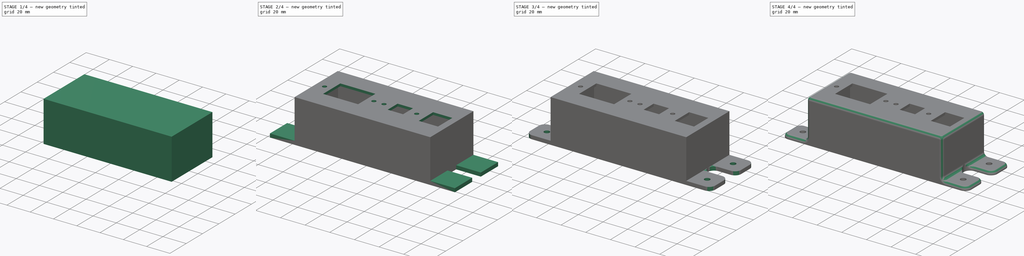
[diagram: build sequence overview — one tinted view per stage of 4, left to right]
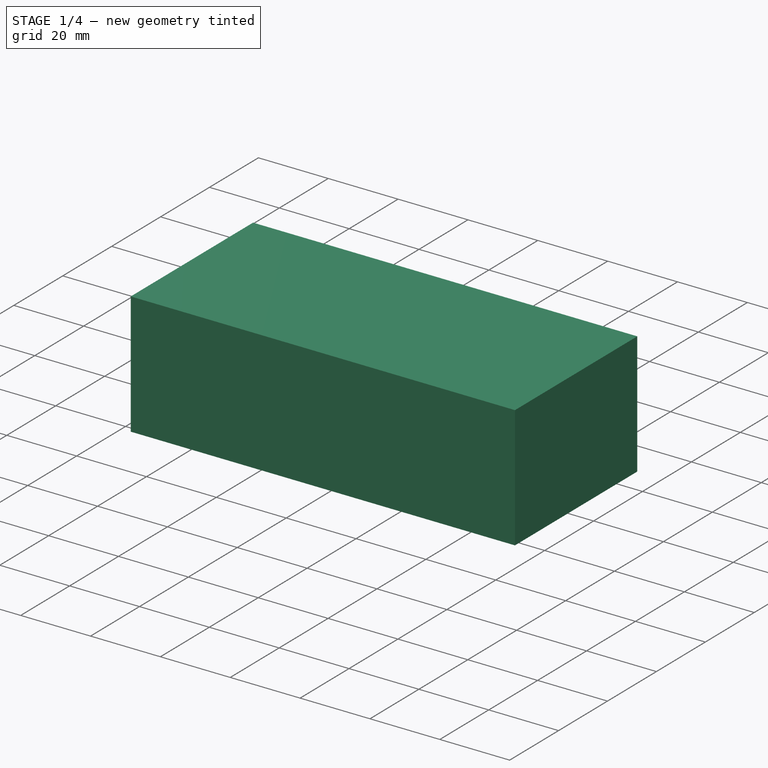
[diagram: stage 1 of 4 — iso view after this stage's code; geometry added in this stage tinted green]
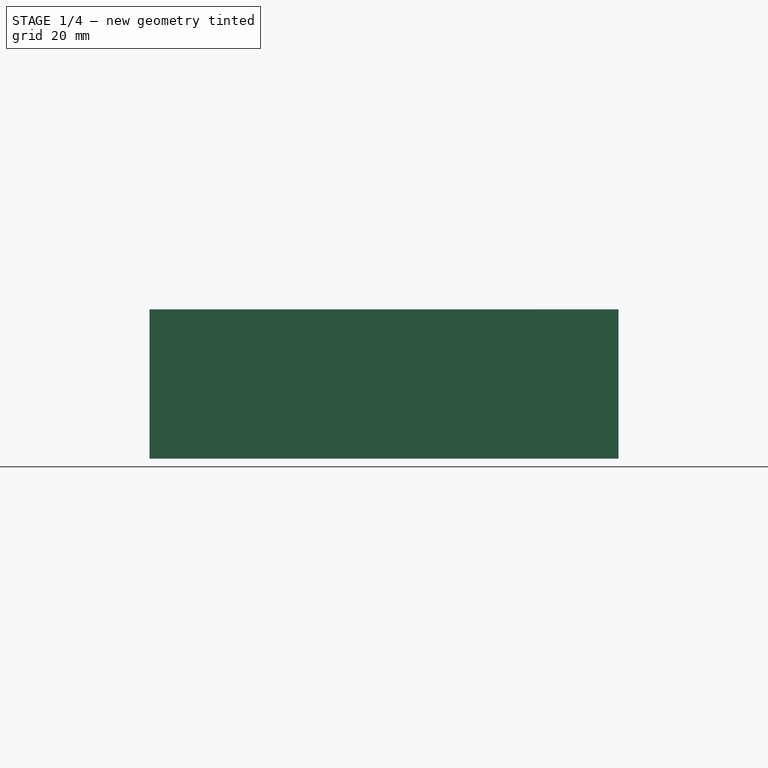
[diagram: stage 1 of 4 — front view after this stage's code; geometry added in this stage tinted green]
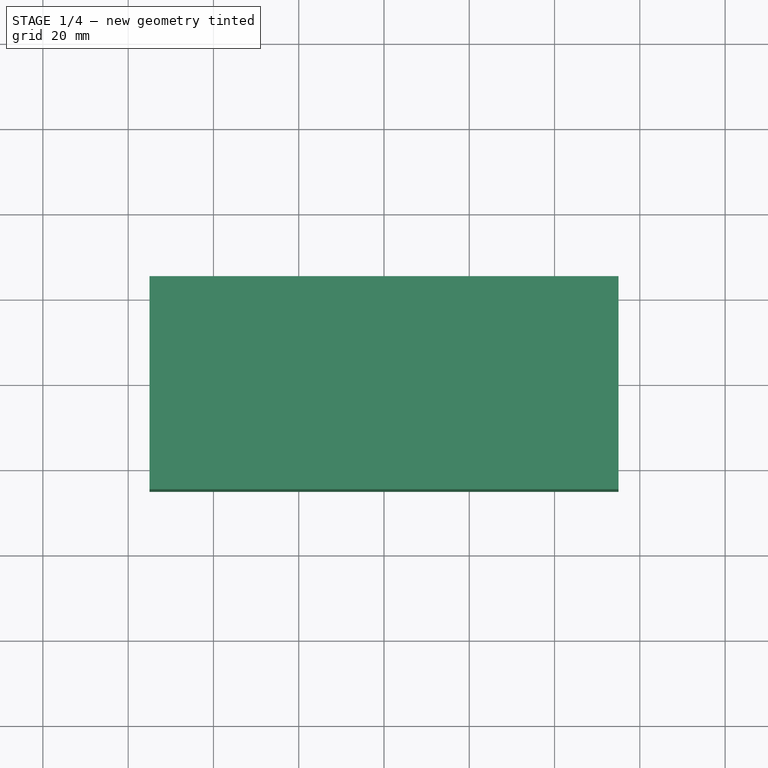
[diagram: stage 1 of 4 — top view after this stage's code; geometry added in this stage tinted green]
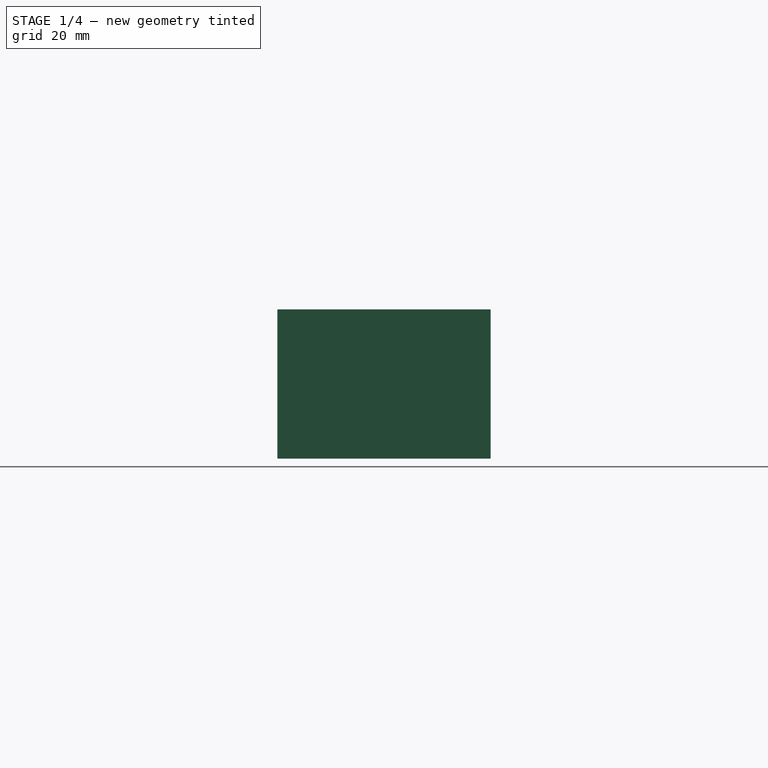
[diagram: stage 1 of 4 — right view after this stage's code; geometry added in this stage tinted green]
FCSTD DOCUMENT  (FreeCAD 0.16R6707 (Git))
Label: IEC case
License: CreativeCommons Attribution-NonCommercial
LicenseURL: http://creativecommons.org/licenses/by-nc/4.0/
objects: Sketcher::SketchObject×7, PartDesign::Pocket×4, PartDesign::Pad×3, PartDesign::Fillet×3, Part::Feature×1
note: 25 computed .brp shape members not serialized (recipe doc carries the construction recipe); baked Part::Feature solids carry a one-line shape summary decoded from their .brp

FEATURE [Part::Feature] Part__Feature  label="IEC Socket"
  Placement = pos=(-20,0,37) rot=(0,0,1;0rad)
  shape: bbox 48.29 x 23.17 x 28.56 mm, 470 faces (baked)
FEATURE [Sketcher::SketchObject] Sketch
  sketch-geometry (4):
    g0: LineSegment StartX=-55 StartY=25 StartZ=0 EndX=55 EndY=25 EndZ=0
    g1: LineSegment StartX=55 StartY=25 StartZ=0 EndX=55 EndY=-25 EndZ=0
    g2: LineSegment StartX=55 StartY=-25 StartZ=0 EndX=-55 EndY=-25 EndZ=0
    g3: LineSegment StartX=-55 StartY=-25 StartZ=0 EndX=-55 EndY=25 EndZ=0
  constraints (12):
    c: Coincident(g0,g1)
    c: Coincident(g1,g2)
    c: Coincident(g2,g3)
    c: Coincident(g3,g0)
    c: Horizontal(g0)
    c: Horizontal(g2)
    c: Vertical(g1)
    c: Vertical(g3)
    c: DistanceY(g1,g1) = 50
    c: Symmetric(g1,g0,g-1)
    c: Symmetric(g2,g1,g-2)
    c: DistanceX(g2,g2) = 110
FEATURE [PartDesign::Pad] Pad
  Length = 35
  Length2 = 100
  Sketch = -> Sketch
  Type = 0
FEATURE [Sketcher::SketchObject] Sketch001
  Placement = pos=(0,0,0) rot=(1,0,0;3.14159rad)
  Support = -> Pad [Face5]
  sketch-geometry (4):
    g0: LineSegment StartX=-53 StartY=22.5 StartZ=0 EndX=53 EndY=22.5 EndZ=0
    g1: LineSegment StartX=53 StartY=22.5 StartZ=0 EndX=53 EndY=-22.5 EndZ=0
    g2: LineSegment StartX=53 StartY=-22.5 StartZ=0 EndX=-53 EndY=-22.5 EndZ=0
    g3: LineSegment StartX=-53 StartY=-22.5 StartZ=0 EndX=-53 EndY=22.5 EndZ=0
  constraints (12):
    c: Coincident(g0,g1)
    c: Coincident(g1,g2)
    c: Coincident(g2,g3)
    c: Coincident(g3,g0)
    c: Horizontal(g0)
    c: Horizontal(g2)
    c: Vertical(g1)
    c: Vertical(g3)
    c: Symmetric(g2,g1,g-2)
    c: Symmetric(g1,g0,g-1)
    c: DistanceX(g0,g0) = 106
    c: DistanceY(g1,g1) = 45
FEATURE [PartDesign::Pocket] Pocket
  Length = 33
  Sketch = -> Sketch001
  Type = 0
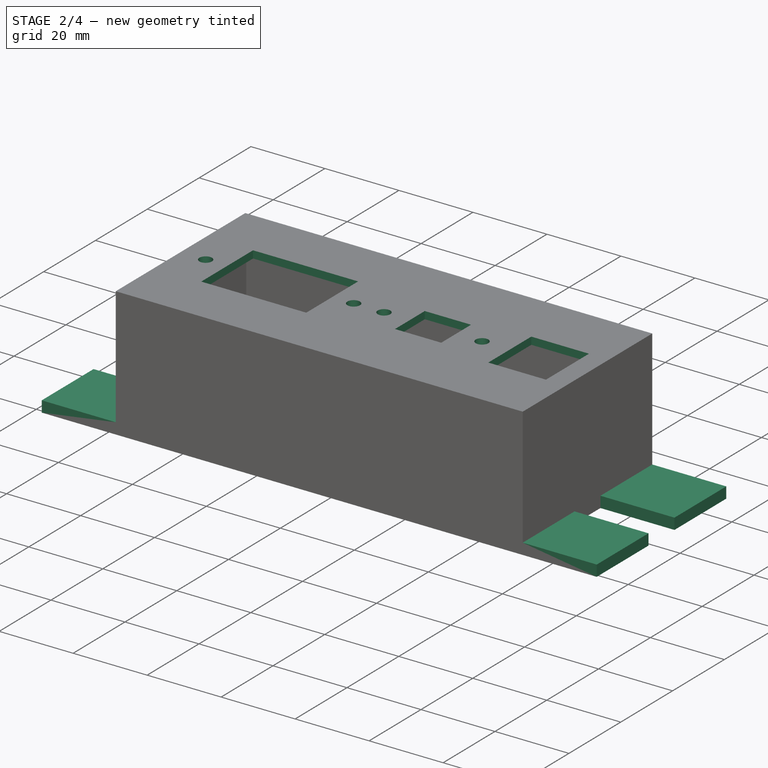
[diagram: stage 2 of 4 — iso view after this stage's code; geometry added in this stage tinted green]
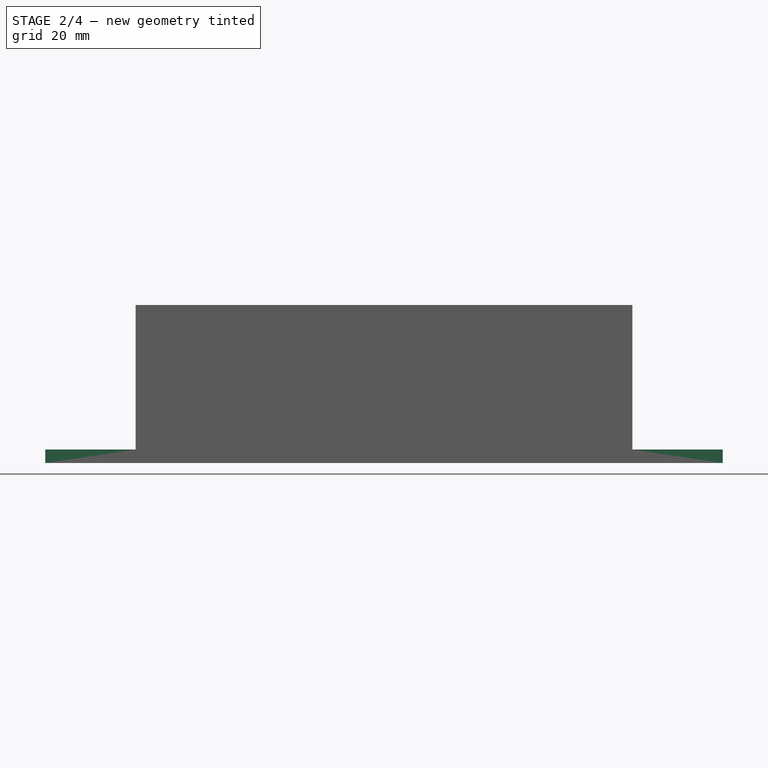
[diagram: stage 2 of 4 — front view after this stage's code; geometry added in this stage tinted green]
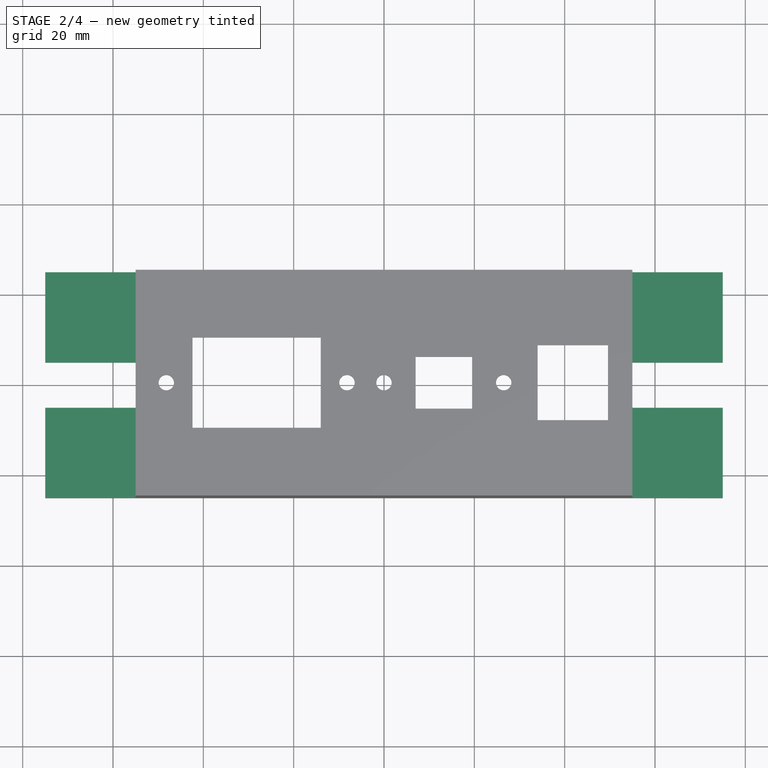
[diagram: stage 2 of 4 — top view after this stage's code; geometry added in this stage tinted green]
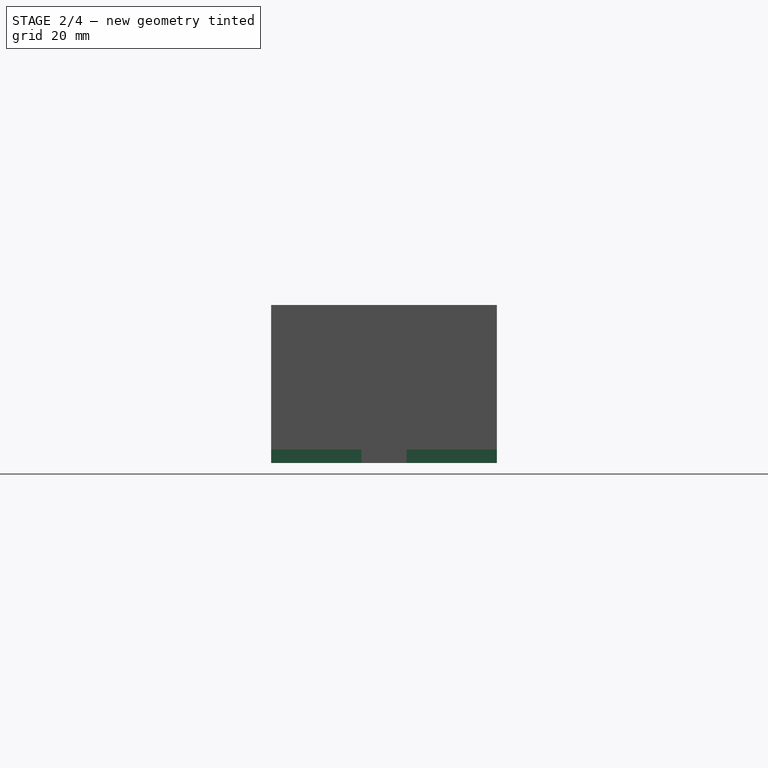
[diagram: stage 2 of 4 — right view after this stage's code; geometry added in this stage tinted green]
FEATURE [Sketcher::SketchObject] Sketch002  label="IEC Port"
  Placement = pos=(0,0,33) rot=(1,0,0;3.14159rad)
  Support = -> Pocket [Face11]
  sketch-geometry (17):
    g0: LineSegment StartX=-42.4 StartY=10 StartZ=0 EndX=-14 EndY=10 EndZ=0
    g1: LineSegment StartX=-14 StartY=10 StartZ=0 EndX=-14 EndY=-10 EndZ=0
    g2: LineSegment StartX=-14 StartY=-10 StartZ=0 EndX=-42.4 EndY=-10 EndZ=0
    g3: LineSegment StartX=-42.4 StartY=-10 StartZ=0 EndX=-42.4 EndY=10 EndZ=0
    g4: Circle CenterX=-48.2 CenterY=0 CenterZ=0 NormalX=0 NormalY=0 NormalZ=1 Radius=1.7
    g5: Circle CenterX=-8.2 CenterY=0 CenterZ=0 NormalX=0 NormalY=0 NormalZ=1 Radius=1.7
    g6: LineSegment StartX=34 StartY=8.3 StartZ=0 EndX=49.6 EndY=8.3 EndZ=0
    g7: LineSegment StartX=49.6 StartY=8.3 StartZ=0 EndX=49.6 EndY=-8.3 EndZ=0
    g8: LineSegment StartX=49.6 StartY=-8.3 StartZ=0 EndX=34 EndY=-8.3 EndZ=0
    g9: LineSegment StartX=34 StartY=-8.3 StartZ=0 EndX=34 EndY=8.3 EndZ=0
    g10: LineSegment StartX=7 StartY=5.75 StartZ=0 EndX=19.5 EndY=5.75 EndZ=0
    g11: LineSegment StartX=19.5 StartY=5.75 StartZ=0 EndX=19.5 EndY=-5.75 EndZ=0
    g12: LineSegment StartX=19.5 StartY=-5.75 StartZ=0 EndX=7 EndY=-5.75 EndZ=0
    g13: LineSegment StartX=7 StartY=-5.75 StartZ=0 EndX=7 EndY=5.75 EndZ=0
    g14: Circle CenterX=0 CenterY=0 CenterZ=0 NormalX=0 NormalY=0 NormalZ=1 Radius=1.7
    g15: Circle CenterX=26.5 CenterY=0 CenterZ=0 NormalX=0 NormalY=0 NormalZ=1 Radius=1.7
    g16: LineSegment [constr] StartX=13.25 StartY=11.5 StartZ=0 EndX=13.25 EndY=-11.5 EndZ=0
  constraints (51):
    c: Coincident(g0,g1)
    c: Coincident(g1,g2)
    c: Coincident(g2,g3)
    c: Coincident(g3,g0)
    c: Horizontal(g0)
    c: Horizontal(g2)
    c: Vertical(g1)
    c: Vertical(g3)
    c: Symmetric(g1,g0,g-1)
    c: DistanceX(g2,g2) = 28.4
    c: DistanceY(g1,g1) = 20
    c: PointOnObject(g4,g-1)
    c: Radius(g4) = 1.7
    c: DistanceX(g4,g2) = 5.8
    c: PointOnObject(g5,g-1)
    c: Equal(g4,g5)
    c: DistanceX(g0,g5) = 5.8
    c: Coincident(g6,g7)
    c: Coincident(g7,g8)
    c: Coincident(g8,g9)
    c: Coincident(g9,g6)
    c: Horizontal(g6)
    c: Horizontal(g8)
    c: Vertical(g7)
    c: Vertical(g9)
    c: Symmetric(g8,g6,g-1)
    c: DistanceX(g8,g8) = 15.6
    c: DistanceY(g7,g7) = 16.6
    c: Coincident(g10,g11)
    c: Coincident(g11,g12)
    c: Coincident(g12,g13)
    c: Coincident(g13,g10)
    c: Horizontal(g10)
    c: Horizontal(g12)
    c: Vertical(g11)
    c: Vertical(g13)
    c: DistanceX(g12,g12) = 12.5
    c: DistanceY(g11,g11) = 11.5
    c: Symmetric(g11,g10,g-1)
    c: PointOnObject(g14,g-1)
    c: PointOnObject(g15,g-1)
    c: Equal(g14,g15)
    c: Equal(g15,g5)
    c: DistanceX(g14,g12) = 7
    c: Coincident(g14,g-1)
    c: DistanceX(g1,g-1) = 14
    c: Symmetric(g12,g11,g16)
    c: Symmetric(g-1,g15,g16)
    c: DistanceY(g16,g16) = 23
    c: DistanceX(g-1,g8) = 34
    c: Symmetric(g16,g16,g-1)
FEATURE [PartDesign::Pocket] Pocket001
  Length = 5
  Sketch = -> Sketch002
  Type = 0
FEATURE [Sketcher::SketchObject] Sketch004
  Placement = pos=(-55,0,0) rot=(0.57735,-0.57735,-0.57735;2.0944rad)
  Support = -> Pocket001 [Face2]
  sketch-geometry (9):
    g0: LineSegment StartX=-25 StartY=0 StartZ=0 EndX=-5 EndY=0 EndZ=0
    g1: LineSegment StartX=-5 StartY=0 StartZ=0 EndX=-5 EndY=3 EndZ=0
    g2: LineSegment StartX=-5 StartY=3 StartZ=0 EndX=-25 EndY=3 EndZ=0
    g3: LineSegment StartX=-25 StartY=3 StartZ=0 EndX=-25 EndY=0 EndZ=0
    g4: LineSegment StartX=5 StartY=0 StartZ=0 EndX=25 EndY=0 EndZ=0
    g5: LineSegment StartX=25 StartY=0 StartZ=0 EndX=25 EndY=3 EndZ=0
    g6: LineSegment StartX=25 StartY=3 StartZ=0 EndX=5 EndY=3 EndZ=0
    g7: LineSegment StartX=5 StartY=3 StartZ=0 EndX=5 EndY=0 EndZ=0
    g8: LineSegment [constr] StartX=0 StartY=0 StartZ=0 EndX=0 EndY=20 EndZ=0
  constraints (27):
    c: Coincident(g0,g1)
    c: Coincident(g1,g2)
    c: Coincident(g2,g3)
    c: Coincident(g3,g0)
    c: Horizontal(g0)
    c: Horizontal(g2)
    c: Vertical(g1)
    c: Vertical(g3)
    c: PointOnObject(g0,g-1)
    c: Coincident(g4,g5)
    c: Coincident(g5,g6)
    c: Coincident(g6,g7)
    c: Coincident(g7,g4)
    c: Horizontal(g4)
    c: Horizontal(g6)
    c: Vertical(g5)
    c: Vertical(g7)
    c: PointOnObject(g4,g-1)
    c: Equal(g1,g7)
    c: Equal(g0,g4)
    c: DistanceY(g1,g1) = 3
    c: Symmetric(g0,g4,g-2)
    c: DistanceX(g6,g6) = 20
    c: DistanceX(g0,g4) = 10
    c: Coincident(g8,g-1)
    c: Vertical(g8)
    c: DistanceY(g8,g8) = 20
FEATURE [PartDesign::Pad] Pad001
  Length = 20
  Length2 = 100
  Sketch = -> Sketch004
  Type = 0
FEATURE [Sketcher::SketchObject] Sketch005
  Placement = pos=(55,0,0) rot=(0.57735,0.57735,0.57735;2.0944rad)
  Support = -> Pad001 [Face3]
  sketch-geometry (9):
    g0: LineSegment StartX=-25 StartY=0 StartZ=0 EndX=-5 EndY=0 EndZ=0
    g1: LineSegment StartX=-5 StartY=0 StartZ=0 EndX=-5 EndY=3 EndZ=0
    g2: LineSegment StartX=-5 StartY=3 StartZ=0 EndX=-25 EndY=3 EndZ=0
    g3: LineSegment StartX=-25 StartY=3 StartZ=0 EndX=-25 EndY=0 EndZ=0
    g4: LineSegment StartX=5 StartY=0 StartZ=0 EndX=25 EndY=0 EndZ=0
    g5: LineSegment StartX=25 StartY=0 StartZ=0 EndX=25 EndY=3 EndZ=0
    g6: LineSegment StartX=25 StartY=3 StartZ=0 EndX=5 EndY=3 EndZ=0
    g7: LineSegment StartX=5 StartY=3 StartZ=0 EndX=5 EndY=0 EndZ=0
    g8: LineSegment [constr] StartX=0 StartY=0 StartZ=0 EndX=0 EndY=20 EndZ=0
  constraints (27):
    c: Coincident(g0,g1)
    c: Coincident(g1,g2)
    c: Coincident(g2,g3)
    c: Coincident(g3,g0)
    c: Horizontal(g0)
    c: Horizontal(g2)
    c: Vertical(g1)
    c: Vertical(g3)
    c: PointOnObject(g0,g-1)
    c: Coincident(g4,g5)
    c: Coincident(g5,g6)
    c: Coincident(g6,g7)
    c: Coincident(g7,g4)
    c: Horizontal(g4)
    c: Horizontal(g6)
    c: Vertical(g5)
    c: Vertical(g7)
    c: PointOnObject(g4,g-1)
    c: Equal(g1,g7)
    c: Equal(g0,g4)
    c: DistanceY(g1,g1) = 3
    c: Symmetric(g0,g4,g-2)
    c: DistanceX(g6,g6) = 20
    c: DistanceX(g0,g4) = 10
    c: Coincident(g8,g-1)
    c: Vertical(g8)
    c: DistanceY(g8,g8) = 20
FEATURE [PartDesign::Pad] Pad002
  Length = 20
  Length2 = 100
  Sketch = -> Sketch005
  Type = 0
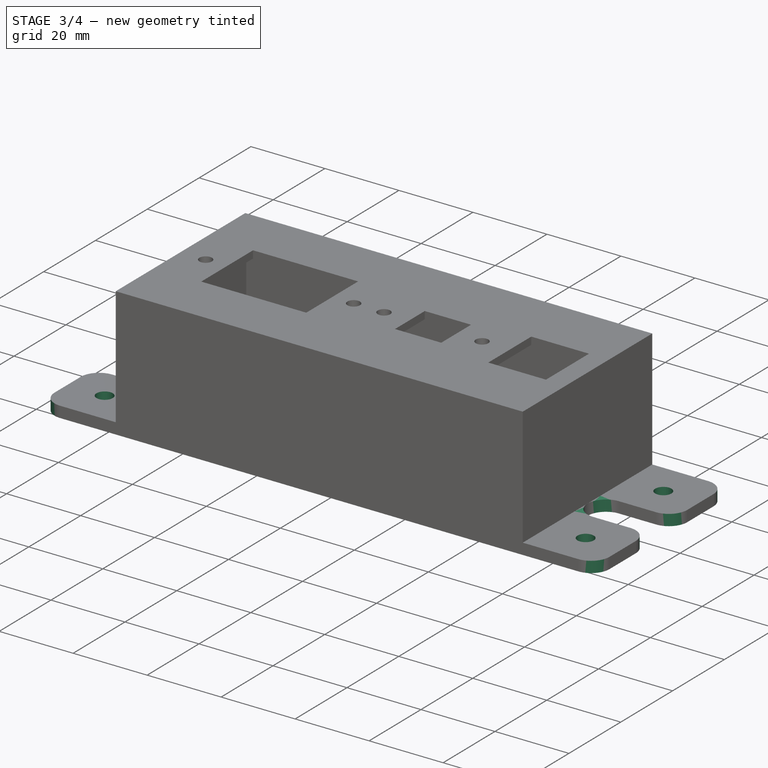
[diagram: stage 3 of 4 — iso view after this stage's code; geometry added in this stage tinted green]
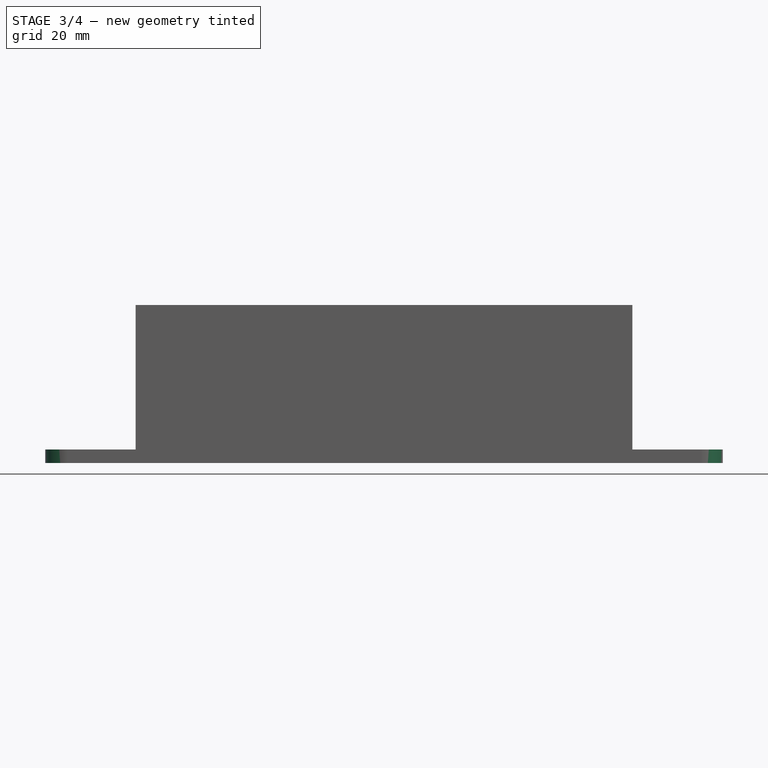
[diagram: stage 3 of 4 — front view after this stage's code; geometry added in this stage tinted green]
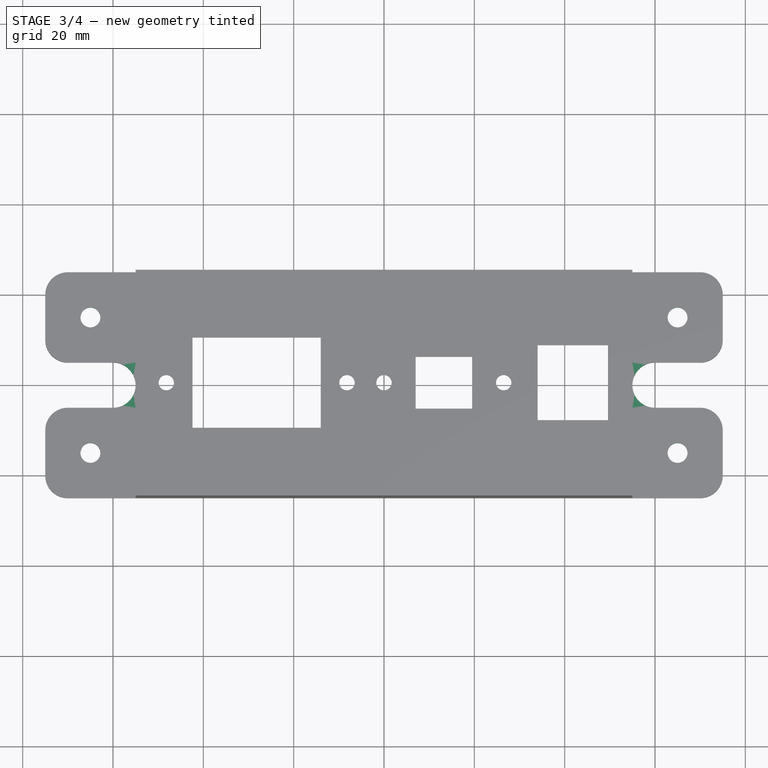
[diagram: stage 3 of 4 — top view after this stage's code; geometry added in this stage tinted green]
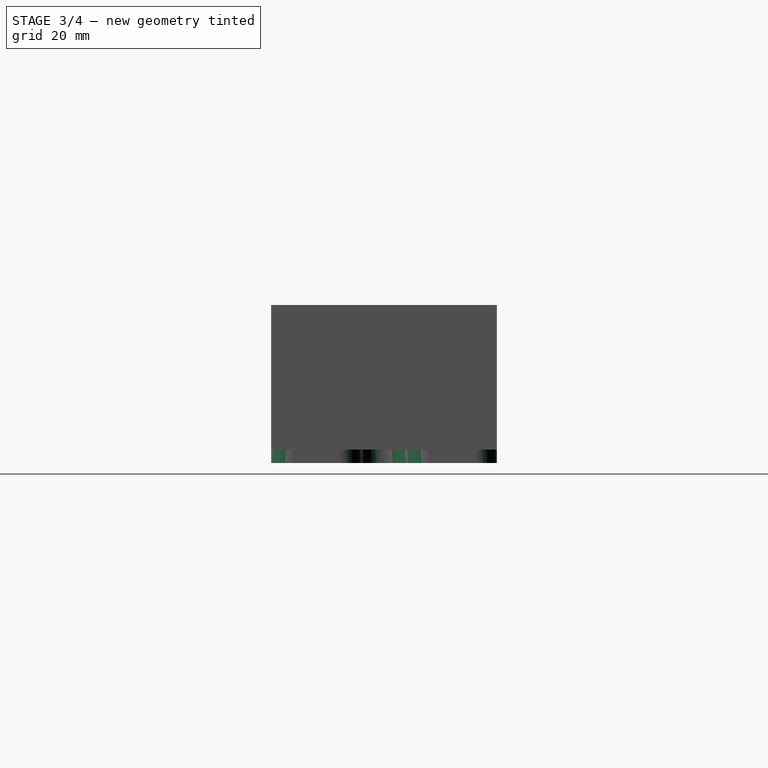
[diagram: stage 3 of 4 — right view after this stage's code; geometry added in this stage tinted green]
FEATURE [Sketcher::SketchObject] Sketch006
  Placement = pos=(75,0,0) rot=(0.57735,0.57735,0.57735;2.0944rad)
  Support = -> Pad002 [Face35]
  sketch-geometry (4):
    g0: Circle CenterX=-65 CenterY=15 CenterZ=0 NormalX=0 NormalY=0 NormalZ=1 Radius=2.2
    g1: Circle CenterX=-65 CenterY=-15 CenterZ=0 NormalX=0 NormalY=0 NormalZ=1 Radius=2.2
    g2: Circle CenterX=65 CenterY=-15 CenterZ=0 NormalX=0 NormalY=0 NormalZ=1 Radius=2.2
    g3: Circle CenterX=65 CenterY=15 CenterZ=0 NormalX=0 NormalY=0 NormalZ=1 Radius=2.2
  constraints (9):
    c: Symmetric(g3,g0,g-2)
    c: Symmetric(g1,g0,g-1)
    c: Symmetric(g1,g2,g-2)
    c: Radius(g3) = 2.2
    c: Equal(g3,g2)
    c: Equal(g3,g1)
    c: Equal(g3,g0)
    c: DistanceX(g1,g-1) = 65
    c: DistanceY(g1,g-1) = 15
FEATURE [PartDesign::Pocket] Pocket002
  Length = 5
  Sketch = -> Sketch006
  Type = 0
FEATURE [Sketcher::SketchObject] Sketch007
  ExternalGeometry = -> [Pocket002]
  Placement = pos=(0,0,3) rot=(0,0,1;0rad)
  Support = -> Pocket002 [Face20]
  sketch-geometry (4):
    g0: Circle CenterX=-65 CenterY=15 CenterZ=0 NormalX=0 NormalY=0 NormalZ=1 Radius=2.2
    g1: Circle CenterX=-65 CenterY=-15 CenterZ=0 NormalX=0 NormalY=0 NormalZ=1 Radius=2.2
    g2: Circle CenterX=65 CenterY=-15 CenterZ=0 NormalX=0 NormalY=0 NormalZ=1 Radius=2.2
    g3: Circle CenterX=65 CenterY=15 CenterZ=0 NormalX=0 NormalY=0 NormalZ=1 Radius=2.2
  constraints (9):
    c: Symmetric(g3,g2,g-1)
    c: Symmetric(g1,g2,g-2)
    c: Symmetric(g1,g0,g-1)
    c: Radius(g0) = 2.2
    c: Equal(g0,g3)
    c: Equal(g0,g2)
    c: Equal(g0,g1)
    c: DistanceX(g3,g-3) = 10
    c: DistanceY(g3,g-3) = 10
FEATURE [PartDesign::Pocket] Pocket003
  Length = 5
  Sketch = -> Sketch007
  Type = 0
FEATURE [PartDesign::Fillet] Fillet
  Base = -> Pocket003 [Edge81,Edge24,Edge105,Edge41,Edge35,Edge37,Edge44,Edge104,Edge29,Edge97,Edge26,Edge31]
  Radius = 4.99
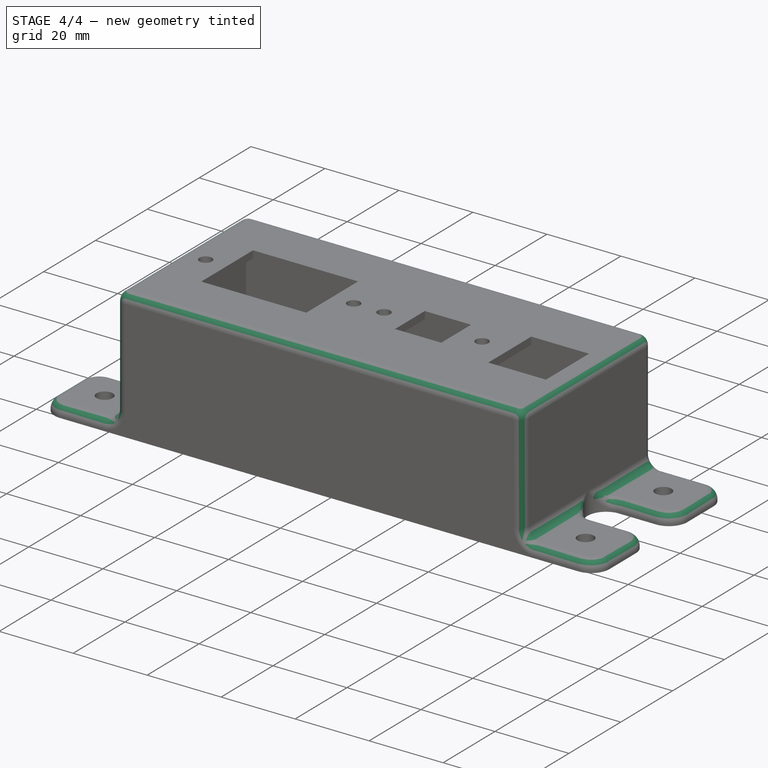
[diagram: stage 4 of 4 — iso view after this stage's code; geometry added in this stage tinted green]
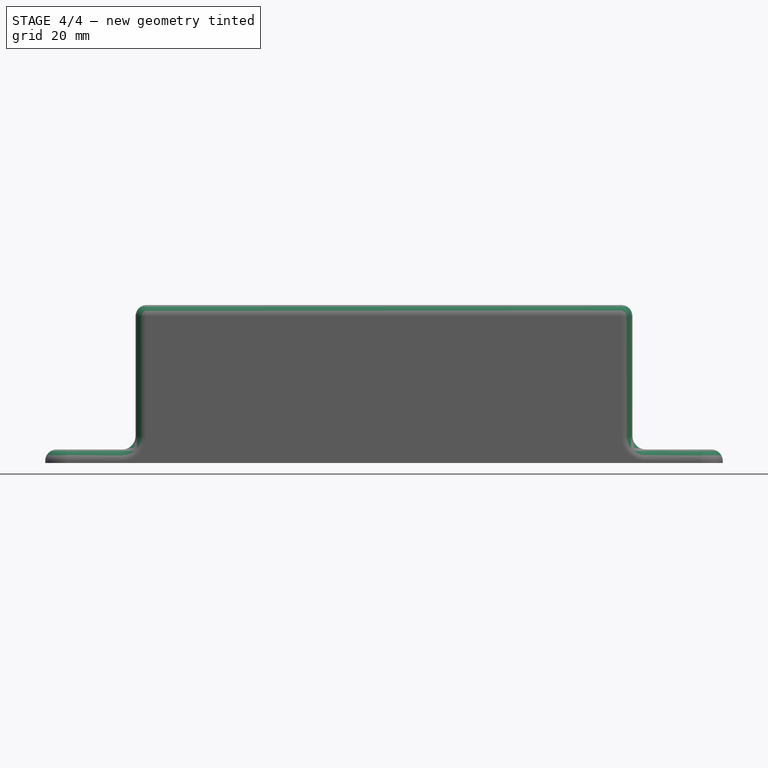
[diagram: stage 4 of 4 — front view after this stage's code; geometry added in this stage tinted green]
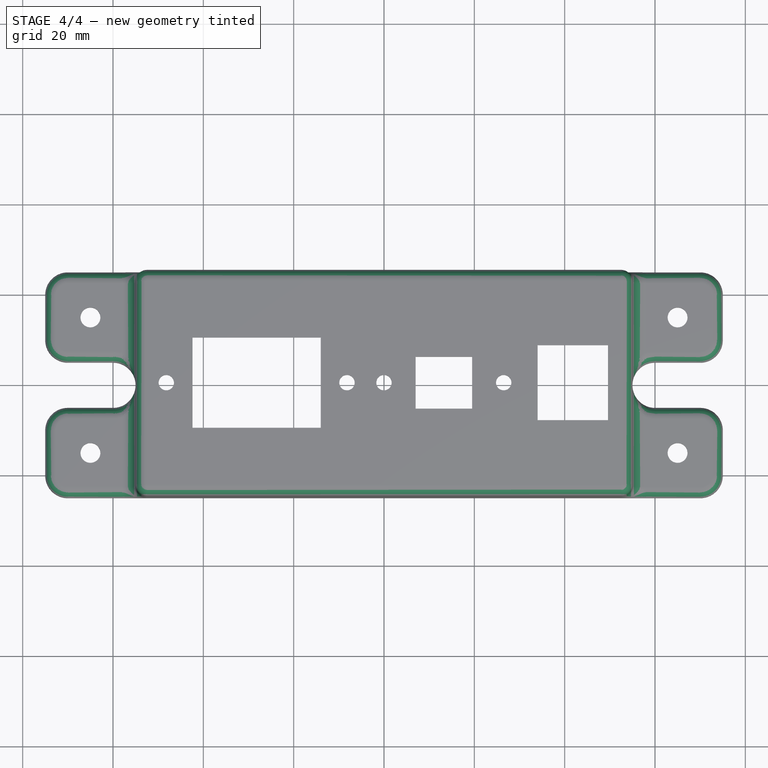
[diagram: stage 4 of 4 — top view after this stage's code; geometry added in this stage tinted green]
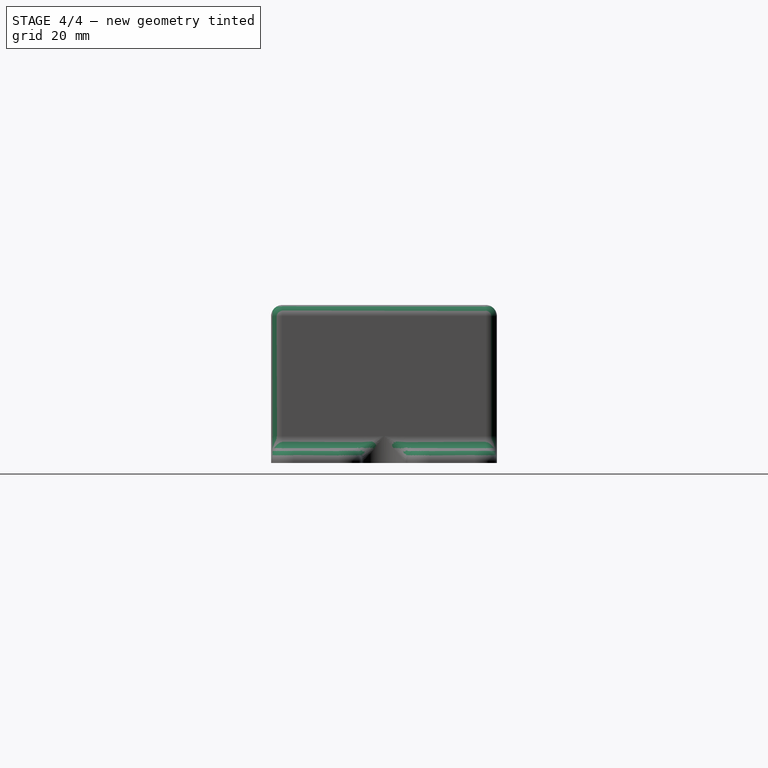
[diagram: stage 4 of 4 — right view after this stage's code; geometry added in this stage tinted green]
FEATURE [PartDesign::Fillet] Fillet001
  Base = -> Fillet [Edge79,Edge80,Edge23,Edge10]
  Radius = 3
FEATURE [PartDesign::Fillet] Fillet002
  Base = -> Fillet001 [Edge82,Edge63,Edge25,Edge23,Edge4,Edge6,Edge8,Edge62]
  Radius = 2.5
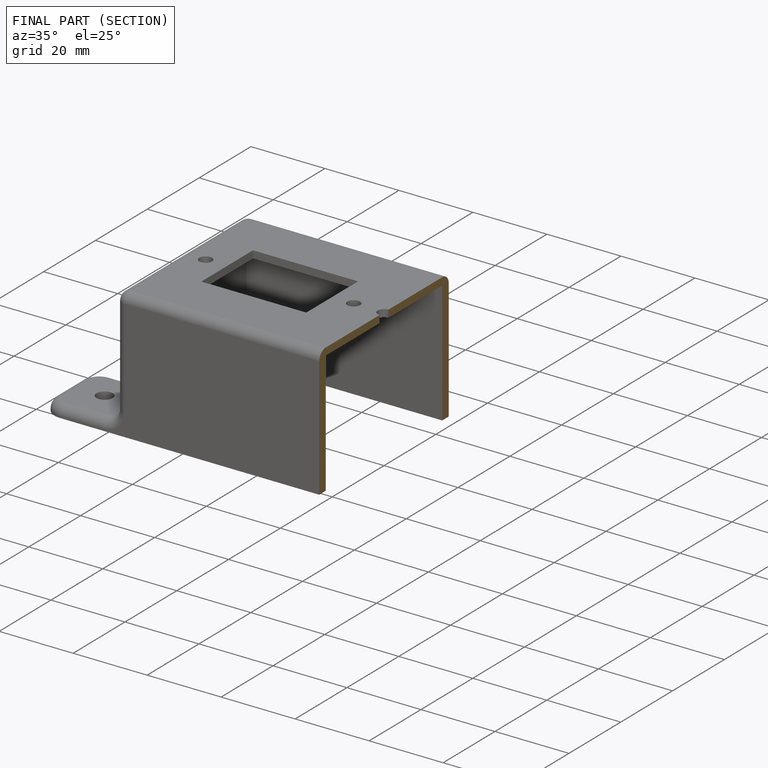
[diagram: finished part — half-section view (interior)]
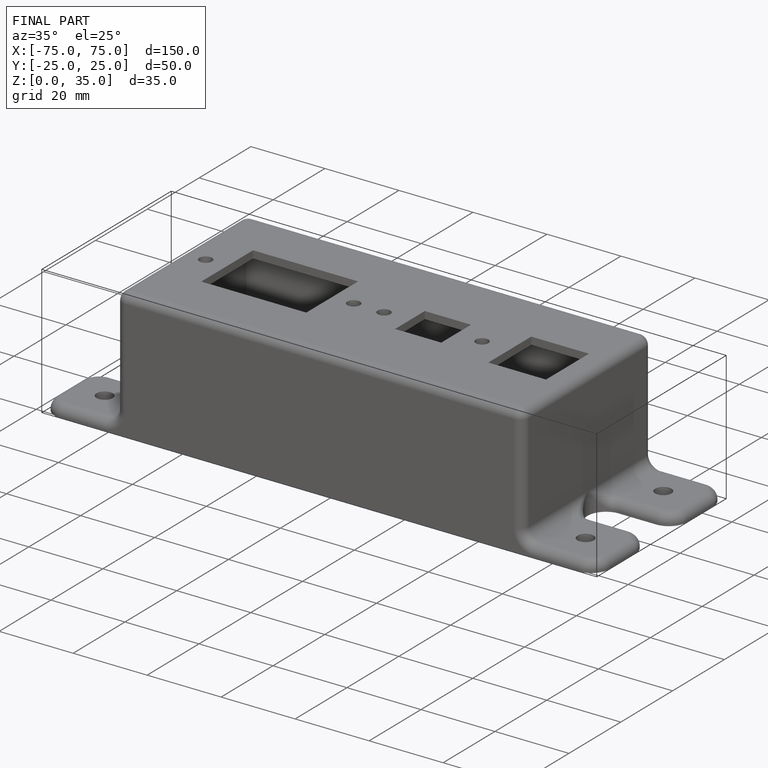
[diagram: finished part — iso view with bounding-box wireframe]
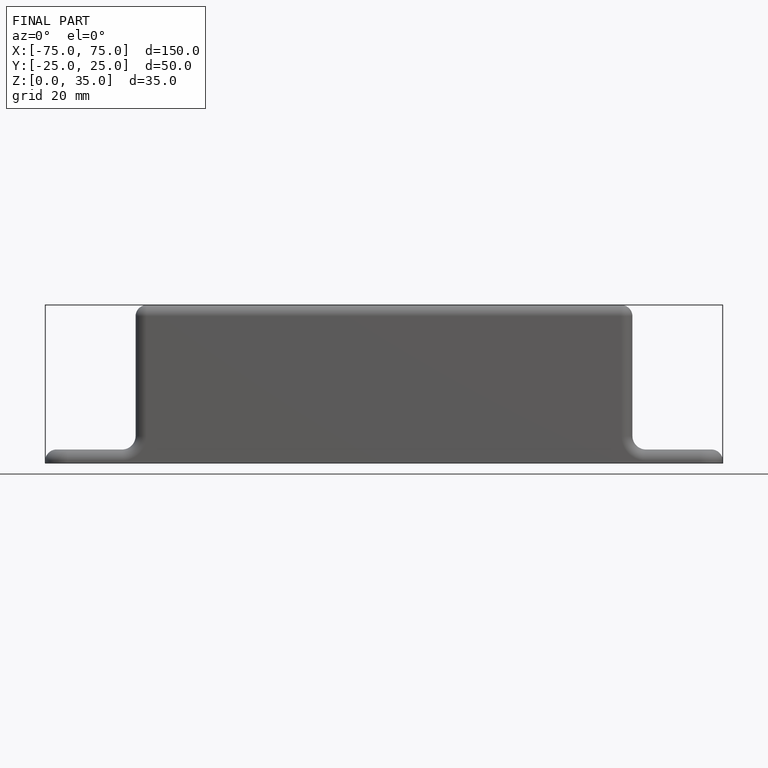
[diagram: finished part — front view with bounding-box wireframe]
